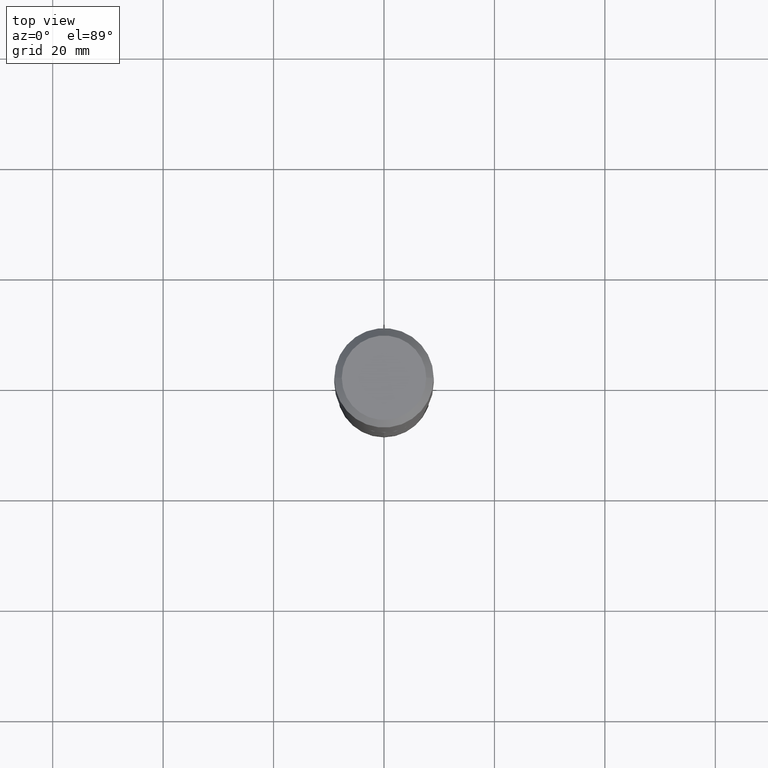
[diagram: clean part render]
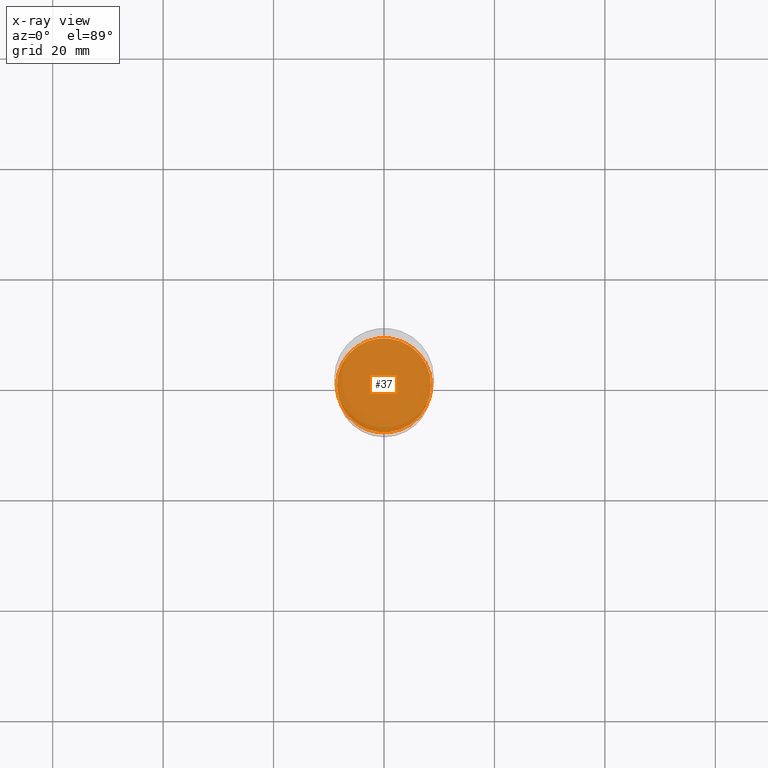
[diagram: x-ray — body ghosted, one internal face saturated and labeled with its STEP entity id]
A machine part, top view, then the same camera in x-ray: the body is ghosted and one INTERNAL B-rep face — a face not visible from any outside direction — is saturated and labeled: STEP entity #37.
In plain terms, the highlighted planar face has unit normal (-0, 0, 1).
Its self-contained STEP definition (entity closure, byte-faithful):
#3 = EDGE_LOOP ( 'NONE', ( #129, #450 ) ) ;
#15 = VERTEX_POINT ( 'NONE', #395 ) ;
#33 = AXIS2_PLACEMENT_3D ( 'NONE', #342, #334, #399 ) ;
#37 = ADVANCED_FACE ( 'NONE', ( #391 ), #63, .F. ) ;
#63 = PLANE ( 'NONE',  #337 ) ;
#111 = AXIS2_PLACEMENT_3D ( 'NONE', #386, #439, #374 ) ;
#129 = ORIENTED_EDGE ( 'NONE', *, *, #351, .F. ) ;
#152 = CARTESIAN_POINT ( 'NONE',  ( -0.3354500000000000259, -8.636790900580327404E-15, -3.157100000000000239 ) ) ;
#243 = EDGE_CURVE ( 'NONE', #413, #15, #247, .T. ) ;
#247 = CIRCLE ( 'NONE', #33, 0.3354500000000000259 ) ;
#253 = DIRECTION ( 'NONE',  ( -2.438088387897960049E-29, 3.491481338843145188E-15, 1.000000000000000000 ) ) ;
#334 = DIRECTION ( 'NONE',  ( -2.445468806185136597E-29, 3.491481338843145583E-15, 1.000000000000000000 ) ) ;
#337 = AXIS2_PLACEMENT_3D ( 'NONE', #362, #253, #356 ) ;
#342 = CARTESIAN_POINT ( 'NONE',  ( 7.720589568007094249E-29, -1.102295573486169565E-14, -3.157100000000000239 ) ) ;
#346 = CIRCLE ( 'NONE', #111, 0.3354500000000000259 ) ;
#351 = EDGE_CURVE ( 'NONE', #15, #413, #346, .T. ) ;
#356 = DIRECTION ( 'NONE',  ( 1.000000000000000000, -6.982962677686265922E-15, 4.876176775795935793E-29 ) ) ;
#362 = CARTESIAN_POINT ( 'NONE',  ( 7.720589568007094249E-29, -1.102295573486169565E-14, -3.157100000000000239 ) ) ;
#374 = DIRECTION ( 'NONE',  ( 1.000000000000000000, -6.982962677686266711E-15, 0.000000000000000000 ) ) ;
#386 = CARTESIAN_POINT ( 'NONE',  ( 7.720589568007094249E-29, -1.102295573486169565E-14, -3.157100000000000239 ) ) ;
#391 = FACE_OUTER_BOUND ( 'NONE', #3, .T. ) ;
#395 = CARTESIAN_POINT ( 'NONE',  ( 0.3354500000000000259, -1.336539056509155355E-14, -3.157100000000000239 ) ) ;
#399 = DIRECTION ( 'NONE',  ( 1.000000000000000000, -6.982962677686266711E-15, 0.000000000000000000 ) ) ;
#413 = VERTEX_POINT ( 'NONE', #152 ) ;
#439 = DIRECTION ( 'NONE',  ( -2.445468806185136597E-29, 3.491481338843145583E-15, 1.000000000000000000 ) ) ;
#450 = ORIENTED_EDGE ( 'NONE', *, *, #243, .F. ) ;